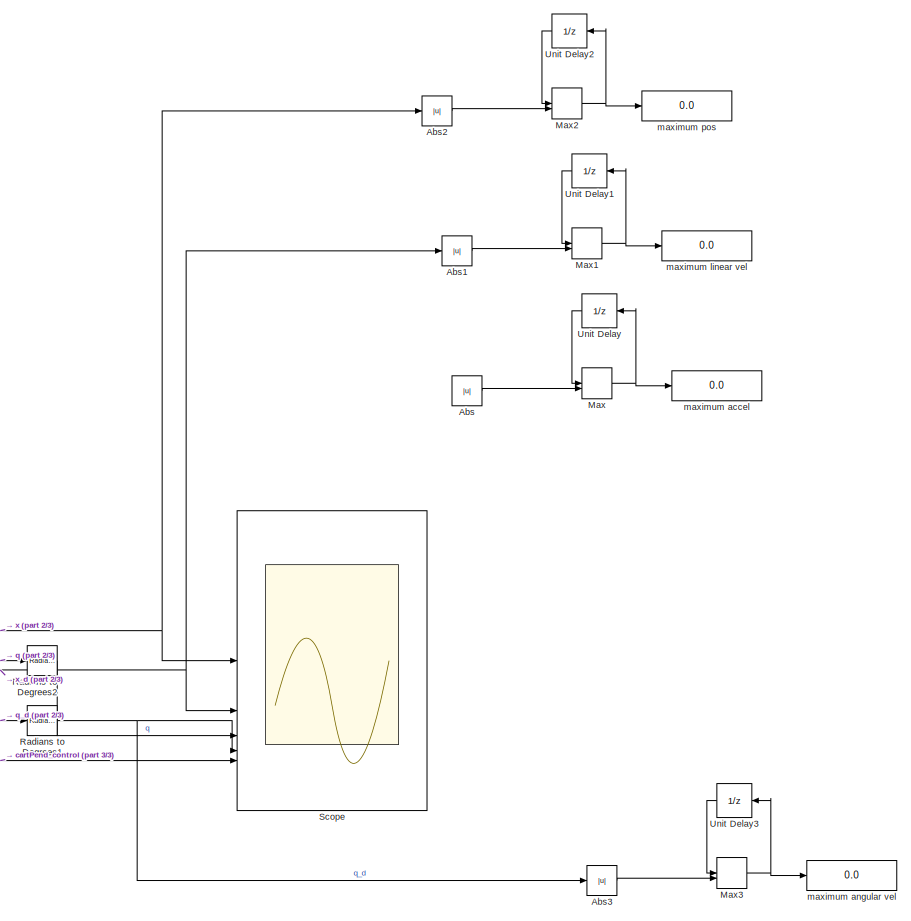
[diagram: root canvas - part 1/3, right side, full height]
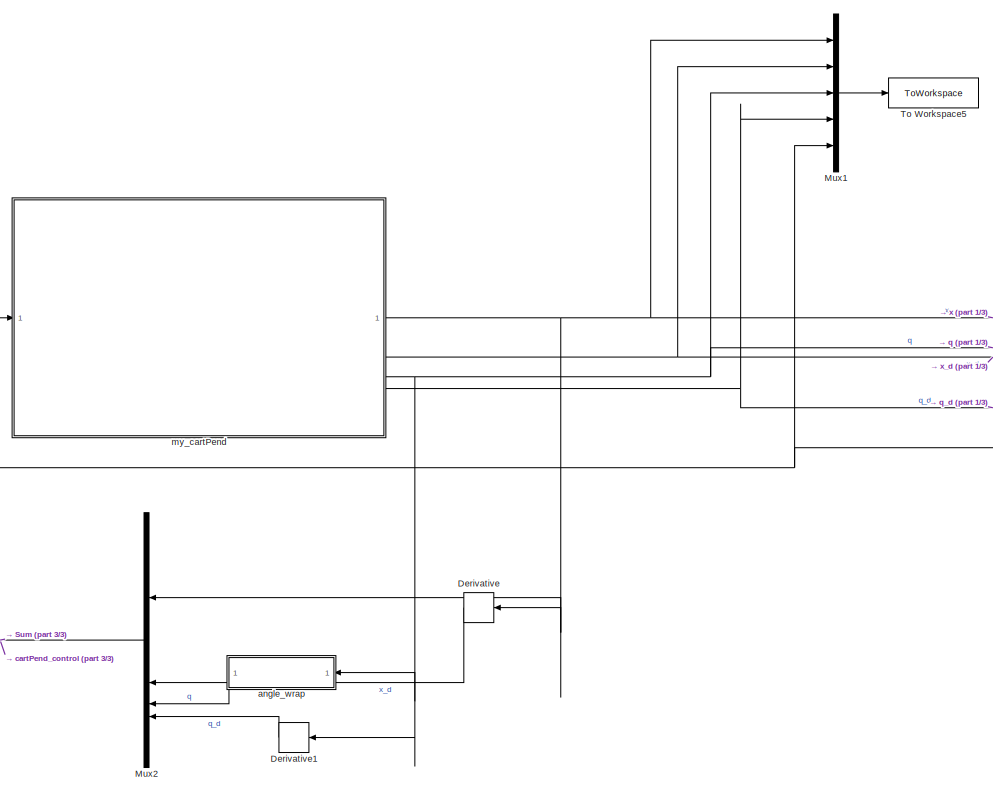
[diagram: root canvas - part 2/3, central region]
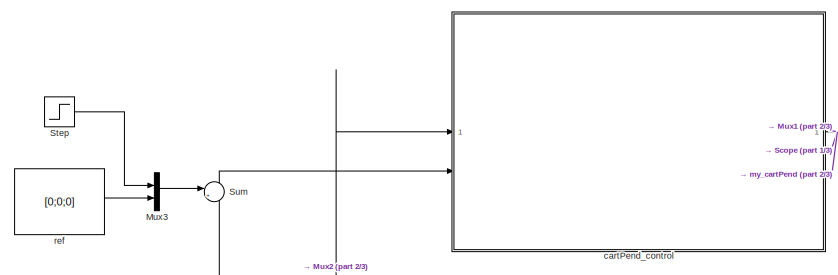
[diagram: root canvas - part 3/3, middle left region]
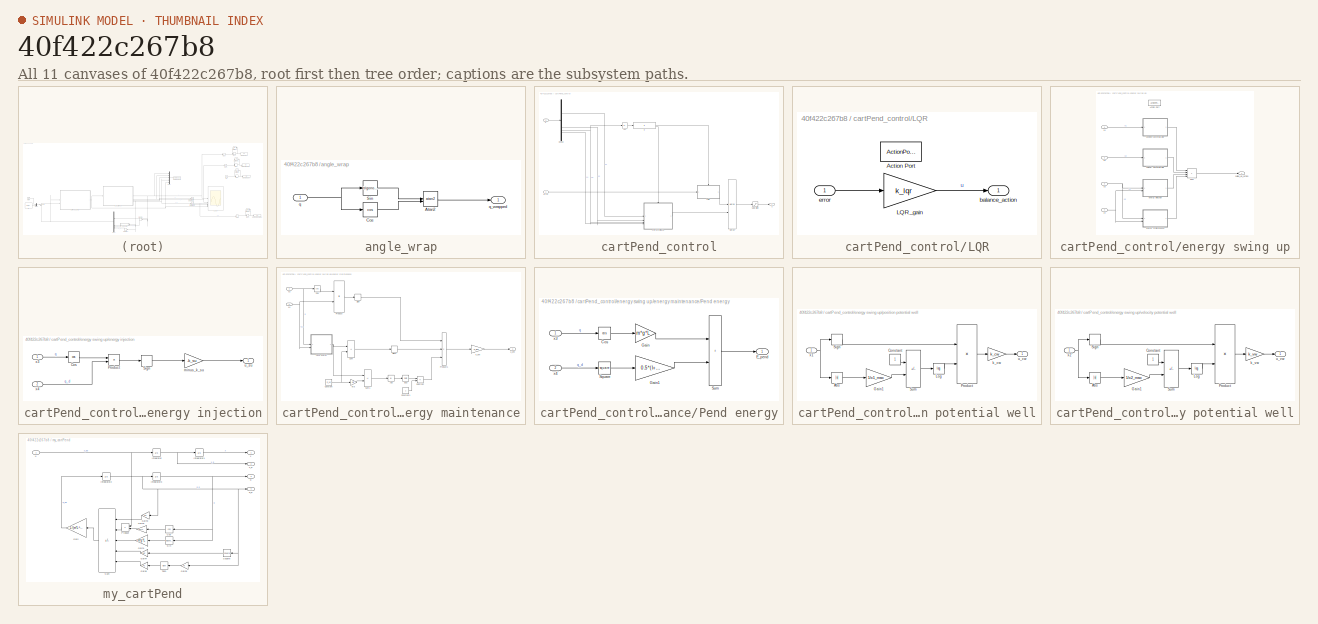
[diagram: thumbnail index - all 11 canvases of the model, root first then tree order]
MODEL slx_40f422c267b8
KIND model
CONFIG AbsTol = auto
CONFIG EnableMultiTasking = off
CONFIG FixedStep = 0.001
CONFIG MaxStep = auto
CONFIG MinStep = auto
CONFIG RelTol = 1e-3
CONFIG SampleTimeConstraint = Unconstrained
CONFIG SolverName = ode4
CONFIG StartTime = 0.0
CONFIG StopTime = 20
BLOCK [Abs] Abs
  SaturateOnIntegerOverflow = off
BLOCK [Abs] Abs1
  SaturateOnIntegerOverflow = off
BLOCK [Abs] Abs2
  SaturateOnIntegerOverflow = off
BLOCK [Abs] Abs3
  SaturateOnIntegerOverflow = off
BLOCK [Derivative] Derivative
  NameLocation = top
BLOCK [Derivative] Derivative1
  NameLocation = top
BLOCK [MinMax] Max
  Function = max
  Inputs = 2
BLOCK [MinMax] Max1
  Function = max
  Inputs = 2
BLOCK [MinMax] Max2
  Function = max
  Inputs = 2
BLOCK [MinMax] Max3
  Function = max
  Inputs = 2
BLOCK [Mux] Mux1
  DisplayOption = bar
  Inputs = 5
BLOCK [Mux] Mux2
  DisplayOption = bar
  NameLocation = top
BLOCK [Mux] Mux3
  DisplayOption = bar
  Inputs = 2
BLOCK [Reference] Radians to Degrees1  REF=simulink_extras/Transformations/Radians
to Degrees
  SourceBlock = simulink_extras/Transformations/Radians\nto Degrees
  SourceType = RadiansToDegrees
BLOCK [Reference] Radians to Degrees2  REF=simulink_extras/Transformations/Radians
to Degrees
  SourceBlock = simulink_extras/Transformations/Radians\nto Degrees
  SourceType = RadiansToDegrees
BLOCK [Scope] Scope
  Floating = off
  NumInputPorts = 5
  ScopeSpecificationString = Simulink.scopes.TimeScopeBlockCfg('CurrentConfiguration', extmgr.ConfigurationSet(extmgr.Configuration('Core','General UI',true,'FigureColor',[1 1 1]),extmgr.Configuration('Core','Source UI',true),extmgr.Configuration('Sources','WiredSimulink',true),extmgr.Configuration('Visuals','Time Domain',true,'SerializedDisplays',{struct('MinYLimReal','-0.04064','MaxYLimReal','0.24978','YLabelReal','(m)','Mi...<+7731ch>
BLOCK [Step] Step
  After = 0
  SampleTime = 0
  Time = 10
BLOCK [Sum] Sum
  Inputs = |+-
BLOCK [ToWorkspace] To Workspace5
  FixptAsFi = on
  MaxDataPoints = inf
  SampleTime = -1
  SaveFormat = Timeseries
  VariableName = data_energy_LQR
BLOCK [UnitDelay] Unit Delay
  HasFrameUpgradeWarning = on
  NameLocation = top
  SampleTime = -1
BLOCK [UnitDelay] Unit Delay1
  HasFrameUpgradeWarning = on
  NameLocation = top
  SampleTime = -1
BLOCK [UnitDelay] Unit Delay2
  HasFrameUpgradeWarning = on
  NameLocation = top
  SampleTime = -1
BLOCK [UnitDelay] Unit Delay3
  HasFrameUpgradeWarning = on
  NameLocation = top
  SampleTime = -1
BLOCK [SubSystem] angle_wrap
  NameLocation = top
BLOCK [Trigonometry] angle_wrap/Atan2
  Operator = atan2
BLOCK [Trigonometry] angle_wrap/Cos
  Operator = cos
BLOCK [Trigonometry] angle_wrap/Sin
BLOCK [Inport] angle_wrap/q
BLOCK [Outport] angle_wrap/q_wrapped
BLOCK [SubSystem] cartPend_control
  SystemSampleTime = 0.001
BLOCK [Abs] cartPend_control/Abs
  SaturateOnIntegerOverflow = off
BLOCK [Demux] cartPend_control/Demux
BLOCK [If] cartPend_control/If
  IfExpression = u1 < angle_threshold
BLOCK [SubSystem] cartPend_control/LQR
  TreatAsAtomicUnit = on
BLOCK [ActionPort] cartPend_control/LQR/Action Port
  ActionPortLabel = if(u1 < angle_threshold)
BLOCK [Gain] cartPend_control/LQR/LQR_gain
  Gain = k_lqr
  Multiplication = Matrix(K*u)
BLOCK [Outport] cartPend_control/LQR/balance_action
BLOCK [Inport] cartPend_control/LQR/error
BLOCK [Merge] cartPend_control/Merge
BLOCK [Saturate] cartPend_control/Saturation
  LowerLimit = -uMax
  UpperLimit = uMax
BLOCK [Inport] cartPend_control/X
BLOCK [SubSystem] cartPend_control/energy swing up
  TreatAsAtomicUnit = on
BLOCK [ActionPort] cartPend_control/energy swing up/Action Port
  ActionPortLabel = else
BLOCK [Sum] cartPend_control/energy swing up/Sum
  IconShape = rectangular
  Inputs = ++++
BLOCK [SubSystem] cartPend_control/energy swing up/energy injection
BLOCK [Trigonometry] cartPend_control/energy swing up/energy injection/Cos
  Operator = cos
BLOCK [Product] cartPend_control/energy swing up/energy injection/Product
BLOCK [Signum] cartPend_control/energy swing up/energy injection/Sign
BLOCK [Gain] cartPend_control/energy swing up/energy injection/minus_k_su
  Gain = -k_su
BLOCK [Outport] cartPend_control/energy swing up/energy injection/u_su
BLOCK [Inport] cartPend_control/energy swing up/energy injection/x3
BLOCK [Inport] cartPend_control/energy swing up/energy injection/x4
  Port = 2
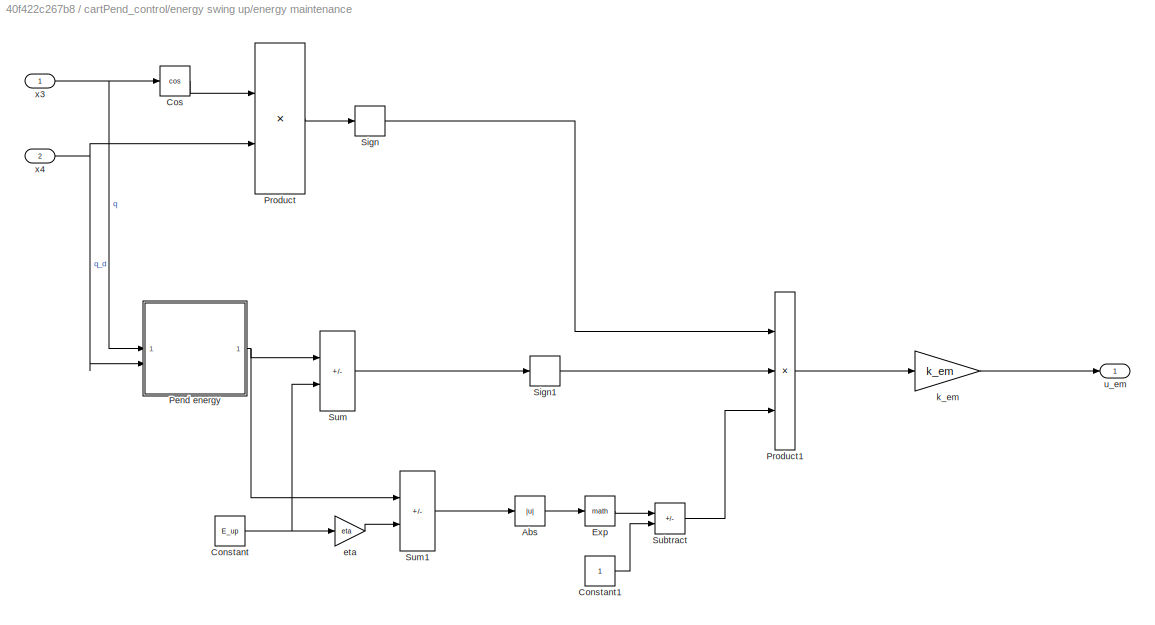
BLOCK [SubSystem] cartPend_control/energy swing up/energy maintenance
BLOCK [Abs] cartPend_control/energy swing up/energy maintenance/Abs
  SaturateOnIntegerOverflow = off
BLOCK [Constant] cartPend_control/energy swing up/energy maintenance/Constant
  Value = E_up
BLOCK [Constant] cartPend_control/energy swing up/energy maintenance/Constant1
BLOCK [Trigonometry] cartPend_control/energy swing up/energy maintenance/Cos
  Operator = cos
BLOCK [Math] cartPend_control/energy swing up/energy maintenance/Exp
BLOCK [SubSystem] cartPend_control/energy swing up/energy maintenance/Pend energy
BLOCK [Trigonometry] cartPend_control/energy swing up/energy maintenance/Pend energy/Cos
  Operator = cos
BLOCK [Outport] cartPend_control/energy swing up/energy maintenance/Pend energy/E_pend
BLOCK [Gain] cartPend_control/energy swing up/energy maintenance/Pend energy/Gain
  Gain = m*g*L
BLOCK [Gain] cartPend_control/energy swing up/energy maintenance/Pend energy/Gain1
  Gain = 0.5*(I+m*L^2)
BLOCK [Math] cartPend_control/energy swing up/energy maintenance/Pend energy/Square
  Operator = square
BLOCK [Sum] cartPend_control/energy swing up/energy maintenance/Pend energy/Sum
  IconShape = rectangular
BLOCK [Inport] cartPend_control/energy swing up/energy maintenance/Pend energy/x3
BLOCK [Inport] cartPend_control/energy swing up/energy maintenance/Pend energy/x4
  Port = 2
BLOCK [Product] cartPend_control/energy swing up/energy maintenance/Product
BLOCK [Product] cartPend_control/energy swing up/energy maintenance/Product1
  Inputs = 3
BLOCK [Signum] cartPend_control/energy swing up/energy maintenance/Sign
BLOCK [Signum] cartPend_control/energy swing up/energy maintenance/Sign1
BLOCK [Sum] cartPend_control/energy swing up/energy maintenance/Subtract
  IconShape = rectangular
  Inputs = +-
BLOCK [Sum] cartPend_control/energy swing up/energy maintenance/Sum
  IconShape = rectangular
  Inputs = +-
BLOCK [Sum] cartPend_control/energy swing up/energy maintenance/Sum1
  IconShape = rectangular
  Inputs = +-
BLOCK [Gain] cartPend_control/energy swing up/energy maintenance/eta
  Gain = eta
BLOCK [Gain] cartPend_control/energy swing up/energy maintenance/k_em
  Gain = k_em
BLOCK [Outport] cartPend_control/energy swing up/energy maintenance/u_em
BLOCK [Inport] cartPend_control/energy swing up/energy maintenance/x3
BLOCK [Inport] cartPend_control/energy swing up/energy maintenance/x4
  Port = 2
BLOCK [SubSystem] cartPend_control/energy swing up/position potential well
BLOCK [Abs] cartPend_control/energy swing up/position potential well/Abs
  SaturateOnIntegerOverflow = off
BLOCK [Constant] cartPend_control/energy swing up/position potential well/Constant
BLOCK [Gain] cartPend_control/energy swing up/position potential well/Gain1
  Gain = 1/x1_max
BLOCK [Math] cartPend_control/energy swing up/position potential well/Log
  Operator = log
BLOCK [Product] cartPend_control/energy swing up/position potential well/Product
BLOCK [Signum] cartPend_control/energy swing up/position potential well/Sign
BLOCK [Sum] cartPend_control/energy swing up/position potential well/Sum
  IconShape = rectangular
  Inputs = +-
BLOCK [Gain] cartPend_control/energy swing up/position potential well/k_cw
  Gain = k_cw
BLOCK [Outport] cartPend_control/energy swing up/position potential well/u_cw
BLOCK [Inport] cartPend_control/energy swing up/position potential well/x1
BLOCK [Outport] cartPend_control/energy swing up/swing_up_action
BLOCK [SubSystem] cartPend_control/energy swing up/velocity potential well
BLOCK [Abs] cartPend_control/energy swing up/velocity potential well/Abs
  SaturateOnIntegerOverflow = off
BLOCK [Constant] cartPend_control/energy swing up/velocity potential well/Constant
BLOCK [Gain] cartPend_control/energy swing up/velocity potential well/Gain1
  Gain = 1/x2_max
BLOCK [Math] cartPend_control/energy swing up/velocity potential well/Log
  Operator = log
BLOCK [Product] cartPend_control/energy swing up/velocity potential well/Product
BLOCK [Signum] cartPend_control/energy swing up/velocity potential well/Sign
BLOCK [Sum] cartPend_control/energy swing up/velocity potential well/Sum
  IconShape = rectangular
  Inputs = +-
BLOCK [Gain] cartPend_control/energy swing up/velocity potential well/k_vw
  Gain = k_vw
BLOCK [Outport] cartPend_control/energy swing up/velocity potential well/u_vw
BLOCK [Inport] cartPend_control/energy swing up/velocity potential well/x2
BLOCK [Inport] cartPend_control/energy swing up/x1
BLOCK [Inport] cartPend_control/energy swing up/x2
  Port = 2
BLOCK [Inport] cartPend_control/energy swing up/x3
  Port = 3
BLOCK [Inport] cartPend_control/energy swing up/x4
  Port = 4
BLOCK [Inport] cartPend_control/error
  Port = 2
BLOCK [Outport] cartPend_control/u
BLOCK [Display] maximum accel
  Decimation = 1
BLOCK [Display] maximum angular vel
  Decimation = 1
BLOCK [Display] maximum linear vel
  Decimation = 1
BLOCK [Display] maximum pos
  Decimation = 1
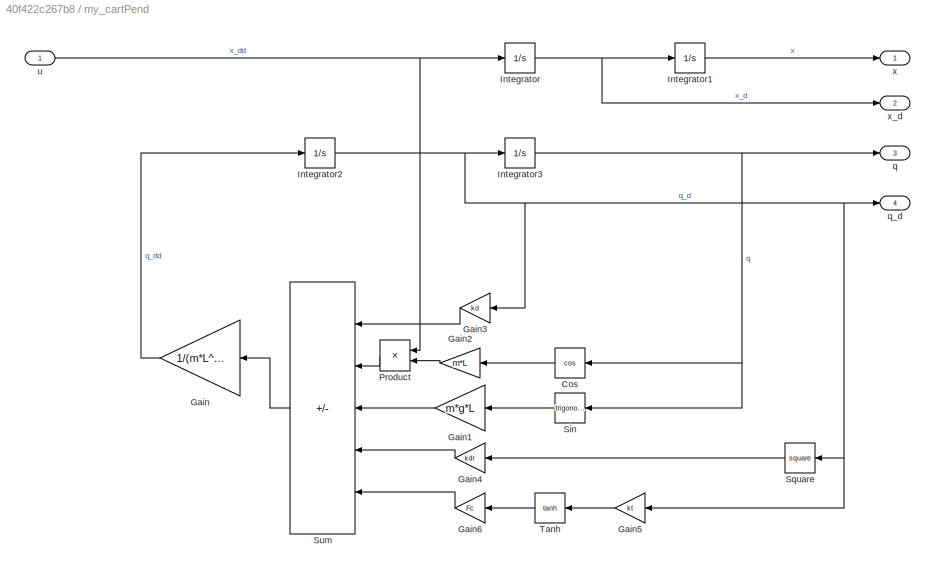
BLOCK [SubSystem] my_cartPend
BLOCK [Trigonometry] my_cartPend/Cos
  NameLocation = top
  Operator = cos
BLOCK [Gain] my_cartPend/Gain
  Gain = 1/(m*L^2+I)
  NameLocation = top
BLOCK [Gain] my_cartPend/Gain1
  Gain = m*g*L
  NameLocation = top
BLOCK [Gain] my_cartPend/Gain2
  Gain = m*L
  NameLocation = top
BLOCK [Gain] my_cartPend/Gain3
  Gain = kd
  NameLocation = top
BLOCK [Gain] my_cartPend/Gain4
  Gain = kdr
  NameLocation = top
BLOCK [Gain] my_cartPend/Gain5
  Gain = kt
  NameLocation = top
BLOCK [Gain] my_cartPend/Gain6
  Gain = Fc
  NameLocation = top
BLOCK [Integrator] my_cartPend/Integrator
BLOCK [Integrator] my_cartPend/Integrator1
BLOCK [Integrator] my_cartPend/Integrator2
BLOCK [Integrator] my_cartPend/Integrator3
  InitialCondition = init_angle
BLOCK [Product] my_cartPend/Product
  NameLocation = top
BLOCK [Trigonometry] my_cartPend/Sin
  NameLocation = top
BLOCK [Math] my_cartPend/Square
  NameLocation = top
  Operator = square
BLOCK [Sum] my_cartPend/Sum
  IconShape = rectangular
  Inputs = --+--
  NameLocation = top
BLOCK [Trigonometry] my_cartPend/Tanh
  NameLocation = top
  Operator = tanh
BLOCK [Outport] my_cartPend/q
  Port = 3
BLOCK [Outport] my_cartPend/q_d
  Port = 4
BLOCK [Inport] my_cartPend/u
BLOCK [Outport] my_cartPend/x
BLOCK [Outport] my_cartPend/x_d
  Port = 2
BLOCK [Constant] ref
  Value = [0;0;0]
  VectorParams1D = off
LINE Abs1:1 -> Max1:2
LINE Abs2:1 -> Max2:2
LINE Abs3:1 -> Max3:2
LINE Abs:1 -> Max:2
LINE Derivative1:1 -> Mux2:4
LINE Derivative:1 -> Mux2:2
NET Max1:1 -> Unit Delay1:1, maximum linear vel:1
NET Max2:1 -> Unit Delay2:1, maximum pos:1
NET Max3:1 -> Unit Delay3:1, maximum angular vel:1
NET Max:1 -> Unit Delay:1, maximum accel:1
LINE Mux1:1 -> To Workspace5:1
NET Mux2:1 -> Sum:2, cartPend_control:1
LINE Mux3:1 -> Sum:1
NET Radians to Degrees1:1 -> Abs3:1, Scope:4
LINE Radians to Degrees2:1 -> Scope:3
LINE Step:1 -> Mux3:1
LINE Sum:1 -> cartPend_control:2
LINE Unit Delay1:1 -> Max1:1
LINE Unit Delay2:1 -> Max2:1
LINE Unit Delay3:1 -> Max3:1
LINE Unit Delay:1 -> Max:1
LINE angle_wrap/Atan2:1 -> angle_wrap/q_wrapped:1
LINE angle_wrap/Cos:1 -> angle_wrap/Atan2:2
LINE angle_wrap/Sin:1 -> angle_wrap/Atan2:1
NET angle_wrap/q:1 -> angle_wrap/Cos:1, angle_wrap/Sin:1
LINE angle_wrap:1 -> Mux2:3
LINE cartPend_control/Abs:1 -> cartPend_control/If:1
LINE cartPend_control/Demux:1 -> cartPend_control/energy swing up:1
LINE cartPend_control/Demux:2 -> cartPend_control/energy swing up:2
NET cartPend_control/Demux:3 -> cartPend_control/Abs:1, cartPend_control/energy swing up:3
LINE cartPend_control/Demux:4 -> cartPend_control/energy swing up:4
LINE cartPend_control/If:1 -> cartPend_control/LQR:ifaction
LINE cartPend_control/If:2 -> cartPend_control/energy swing up:ifaction
LINE cartPend_control/LQR/LQR_gain:1 -> cartPend_control/LQR/balance_action:1
LINE cartPend_control/LQR/error:1 -> cartPend_control/LQR/LQR_gain:1
LINE cartPend_control/LQR:1 -> cartPend_control/Merge:1
LINE cartPend_control/Merge:1 -> cartPend_control/Saturation:1
LINE cartPend_control/Saturation:1 -> cartPend_control/u:1
LINE cartPend_control/X:1 -> cartPend_control/Demux:1
LINE cartPend_control/energy swing up/Sum:1 -> cartPend_control/energy swing up/swing_up_action:1
LINE cartPend_control/energy swing up/energy injection/Cos:1 -> cartPend_control/energy swing up/energy injection/Product:1
LINE cartPend_control/energy swing up/energy injection/Product:1 -> cartPend_control/energy swing up/energy injection/Sign:1
LINE cartPend_control/energy swing up/energy injection/Sign:1 -> cartPend_control/energy swing up/energy injection/minus_k_su:1
LINE cartPend_control/energy swing up/energy injection/minus_k_su:1 -> cartPend_control/energy swing up/energy injection/u_su:1
LINE cartPend_control/energy swing up/energy injection/x3:1 -> cartPend_control/energy swing up/energy injection/Cos:1
LINE cartPend_control/energy swing up/energy injection/x4:1 -> cartPend_control/energy swing up/energy injection/Product:2
LINE cartPend_control/energy swing up/energy injection:1 -> cartPend_control/energy swing up/Sum:3
LINE cartPend_control/energy swing up/energy maintenance/Abs:1 -> cartPend_control/energy swing up/energy maintenance/Exp:1
LINE cartPend_control/energy swing up/energy maintenance/Constant1:1 -> cartPend_control/energy swing up/energy maintenance/Subtract:2
NET cartPend_control/energy swing up/energy maintenance/Constant:1 -> cartPend_control/energy swing up/energy maintenance/Sum:2, cartPend_control/energy swing up/energy maintenance/eta:1
LINE cartPend_control/energy swing up/energy maintenance/Cos:1 -> cartPend_control/energy swing up/energy maintenance/Product:1
LINE cartPend_control/energy swing up/energy maintenance/Exp:1 -> cartPend_control/energy swing up/energy maintenance/Subtract:1
LINE cartPend_control/energy swing up/energy maintenance/Pend energy/Cos:1 -> cartPend_control/energy swing up/energy maintenance/Pend energy/Gain:1
LINE cartPend_control/energy swing up/energy maintenance/Pend energy/Gain1:1 -> cartPend_control/energy swing up/energy maintenance/Pend energy/Sum:2
LINE cartPend_control/energy swing up/energy maintenance/Pend energy/Gain:1 -> cartPend_control/energy swing up/energy maintenance/Pend energy/Sum:1
LINE cartPend_control/energy swing up/energy maintenance/Pend energy/Square:1 -> cartPend_control/energy swing up/energy maintenance/Pend energy/Gain1:1
LINE cartPend_control/energy swing up/energy maintenance/Pend energy/Sum:1 -> cartPend_control/energy swing up/energy maintenance/Pend energy/E_pend:1
LINE cartPend_control/energy swing up/energy maintenance/Pend energy/x3:1 -> cartPend_control/energy swing up/energy maintenance/Pend energy/Cos:1
LINE cartPend_control/energy swing up/energy maintenance/Pend energy/x4:1 -> cartPend_control/energy swing up/energy maintenance/Pend energy/Square:1
NET cartPend_control/energy swing up/energy maintenance/Pend energy:1 -> cartPend_control/energy swing up/energy maintenance/Sum1:1, cartPend_control/energy swing up/energy maintenance/Sum:1
LINE cartPend_control/energy swing up/energy maintenance/Product1:1 -> cartPend_control/energy swing up/energy maintenance/k_em:1
LINE cartPend_control/energy swing up/energy maintenance/Product:1 -> cartPend_control/energy swing up/energy maintenance/Sign:1
LINE cartPend_control/energy swing up/energy maintenance/Sign1:1 -> cartPend_control/energy swing up/energy maintenance/Product1:2
LINE cartPend_control/energy swing up/energy maintenance/Sign:1 -> cartPend_control/energy swing up/energy maintenance/Product1:1
LINE cartPend_control/energy swing up/energy maintenance/Subtract:1 -> cartPend_control/energy swing up/energy maintenance/Product1:3
LINE cartPend_control/energy swing up/energy maintenance/Sum1:1 -> cartPend_control/energy swing up/energy maintenance/Abs:1
LINE cartPend_control/energy swing up/energy maintenance/Sum:1 -> cartPend_control/energy swing up/energy maintenance/Sign1:1
LINE cartPend_control/energy swing up/energy maintenance/eta:1 -> cartPend_control/energy swing up/energy maintenance/Sum1:2
LINE cartPend_control/energy swing up/energy maintenance/k_em:1 -> cartPend_control/energy swing up/energy maintenance/u_em:1
NET cartPend_control/energy swing up/energy maintenance/x3:1 -> cartPend_control/energy swing up/energy maintenance/Cos:1, cartPend_control/energy swing up/energy maintenance/Pend energy:1
NET cartPend_control/energy swing up/energy maintenance/x4:1 -> cartPend_control/energy swing up/energy maintenance/Pend energy:2, cartPend_control/energy swing up/energy maintenance/Product:2
LINE cartPend_control/energy swing up/energy maintenance:1 -> cartPend_control/energy swing up/Sum:4
LINE cartPend_control/energy swing up/position potential well/Abs:1 -> cartPend_control/energy swing up/position potential well/Gain1:1
LINE cartPend_control/energy swing up/position potential well/Constant:1 -> cartPend_control/energy swing up/position potential well/Sum:1
LINE cartPend_control/energy swing up/position potential well/Gain1:1 -> cartPend_control/energy swing up/position potential well/Sum:2
LINE cartPend_control/energy swing up/position potential well/Log:1 -> cartPend_control/energy swing up/position potential well/Product:2
LINE cartPend_control/energy swing up/position potential well/Product:1 -> cartPend_control/energy swing up/position potential well/k_cw:1
LINE cartPend_control/energy swing up/position potential well/Sign:1 -> cartPend_control/energy swing up/position potential well/Product:1
LINE cartPend_control/energy swing up/position potential well/Sum:1 -> cartPend_control/energy swing up/position potential well/Log:1
LINE cartPend_control/energy swing up/position potential well/k_cw:1 -> cartPend_control/energy swing up/position potential well/u_cw:1
NET cartPend_control/energy swing up/position potential well/x1:1 -> cartPend_control/energy swing up/position potential well/Abs:1, cartPend_control/energy swing up/position potential well/Sign:1
LINE cartPend_control/energy swing up/position potential well:1 -> cartPend_control/energy swing up/Sum:1
LINE cartPend_control/energy swing up/velocity potential well/Abs:1 -> cartPend_control/energy swing up/velocity potential well/Gain1:1
LINE cartPend_control/energy swing up/velocity potential well/Constant:1 -> cartPend_control/energy swing up/velocity potential well/Sum:1
LINE cartPend_control/energy swing up/velocity potential well/Gain1:1 -> cartPend_control/energy swing up/velocity potential well/Sum:2
LINE cartPend_control/energy swing up/velocity potential well/Log:1 -> cartPend_control/energy swing up/velocity potential well/Product:2
LINE cartPend_control/energy swing up/velocity potential well/Product:1 -> cartPend_control/energy swing up/velocity potential well/k_vw:1
LINE cartPend_control/energy swing up/velocity potential well/Sign:1 -> cartPend_control/energy swing up/velocity potential well/Product:1
LINE cartPend_control/energy swing up/velocity potential well/Sum:1 -> cartPend_control/energy swing up/velocity potential well/Log:1
LINE cartPend_control/energy swing up/velocity potential well/k_vw:1 -> cartPend_control/energy swing up/velocity potential well/u_vw:1
NET cartPend_control/energy swing up/velocity potential well/x2:1 -> cartPend_control/energy swing up/velocity potential well/Abs:1, cartPend_control/energy swing up/velocity potential well/Sign:1
LINE cartPend_control/energy swing up/velocity potential well:1 -> cartPend_control/energy swing up/Sum:2
LINE cartPend_control/energy swing up/x1:1 -> cartPend_control/energy swing up/position potential well:1
LINE cartPend_control/energy swing up/x2:1 -> cartPend_control/energy swing up/velocity potential well:1
NET cartPend_control/energy swing up/x3:1 -> cartPend_control/energy swing up/energy injection:1, cartPend_control/energy swing up/energy maintenance:1
NET cartPend_control/energy swing up/x4:1 -> cartPend_control/energy swing up/energy injection:2, cartPend_control/energy swing up/energy maintenance:2
LINE cartPend_control/energy swing up:1 -> cartPend_control/Merge:2
LINE cartPend_control/error:1 -> cartPend_control/LQR:1
NET cartPend_control:1 -> Mux1:5, Scope:5, my_cartPend:1
LINE my_cartPend/Cos:1 -> my_cartPend/Gain2:1
LINE my_cartPend/Gain1:1 -> my_cartPend/Sum:3
LINE my_cartPend/Gain2:1 -> my_cartPend/Product:2
LINE my_cartPend/Gain3:1 -> my_cartPend/Sum:1
LINE my_cartPend/Gain4:1 -> my_cartPend/Sum:4
LINE my_cartPend/Gain5:1 -> my_cartPend/Tanh:1
LINE my_cartPend/Gain6:1 -> my_cartPend/Sum:5
LINE my_cartPend/Gain:1 -> my_cartPend/Integrator2:1
LINE my_cartPend/Integrator1:1 -> my_cartPend/x:1
NET my_cartPend/Integrator2:1 -> my_cartPend/Gain3:1, my_cartPend/Gain5:1, my_cartPend/Integrator3:1, my_cartPend/Square:1, my_cartPend/q_d:1
NET my_cartPend/Integrator3:1 -> my_cartPend/Cos:1, my_cartPend/Sin:1, my_cartPend/q:1
NET my_cartPend/Integrator:1 -> my_cartPend/Integrator1:1, my_cartPend/x_d:1
LINE my_cartPend/Product:1 -> my_cartPend/Sum:2
LINE my_cartPend/Sin:1 -> my_cartPend/Gain1:1
LINE my_cartPend/Square:1 -> my_cartPend/Gain4:1
LINE my_cartPend/Sum:1 -> my_cartPend/Gain:1
LINE my_cartPend/Tanh:1 -> my_cartPend/Gain6:1
NET my_cartPend/u:1 -> my_cartPend/Integrator:1, my_cartPend/Product:1
NET my_cartPend:1 -> Abs2:1, Derivative:1, Mux1:1, Mux2:1, Scope:1
NET my_cartPend:2 -> Abs1:1, Mux1:2, Scope:2
NET my_cartPend:3 -> Derivative1:1, Mux1:3, Radians to Degrees2:1, angle_wrap:1
NET my_cartPend:4 -> Mux1:4, Radians to Degrees1:1
LINE ref:1 -> Mux3:2
note: NET lines group one-source signal fan-out (src -> all destinations, sorted); 1:1 wires keep LINE
